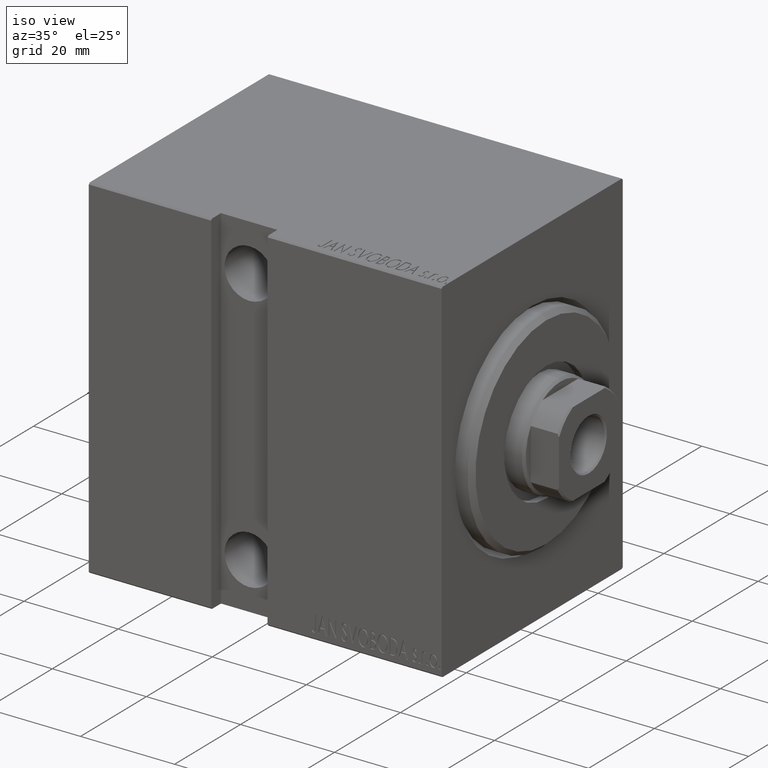
[diagram: clean part render]
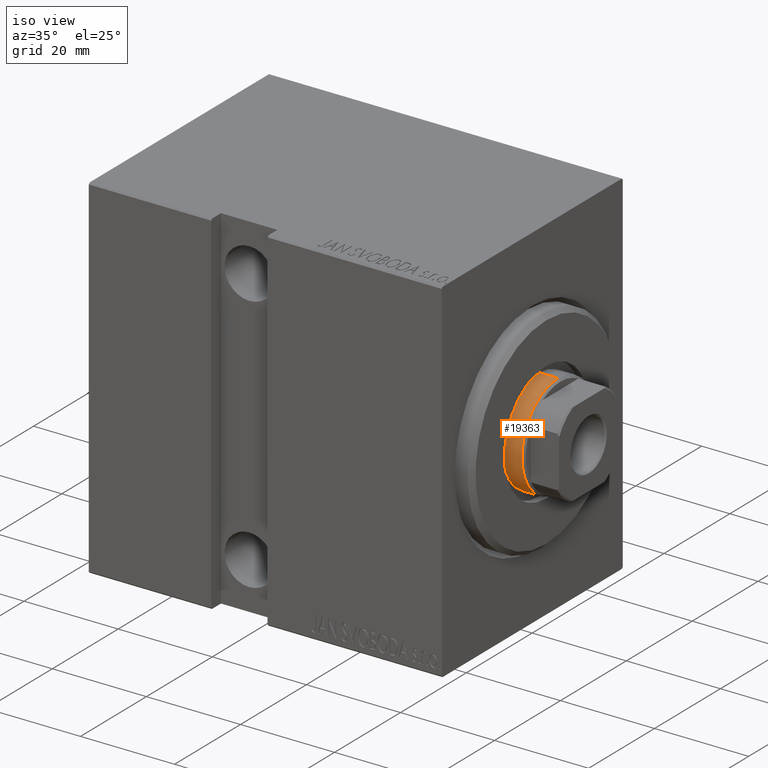
[diagram: same view with one face highlighted and labeled with its STEP entity id]
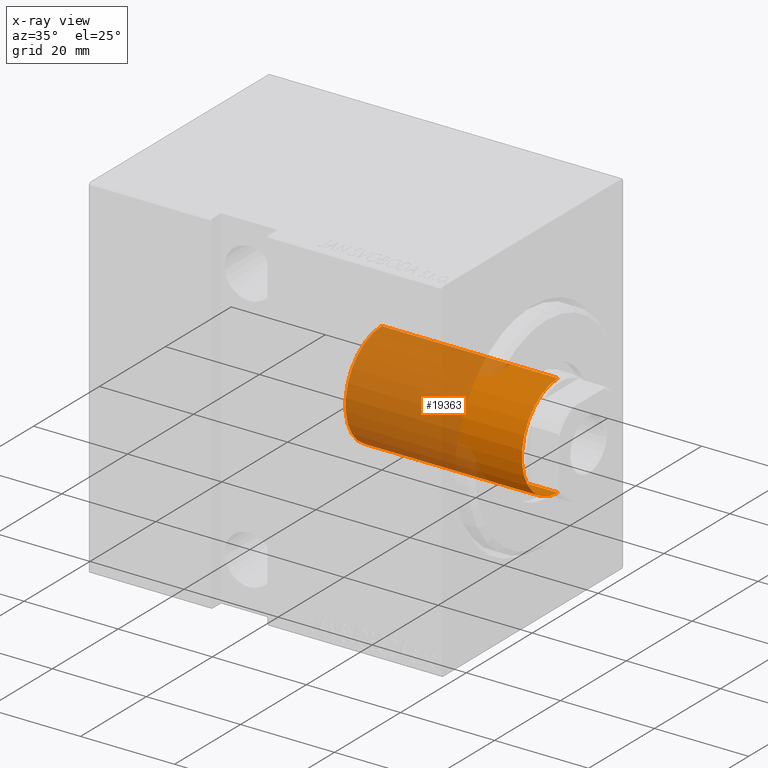
[diagram: x-ray of the same camera — body ghosted, the highlighted face saturated]
A machine part, iso view. The second image highlights one B-rep face of the part: STEP entity #19363.
The next image is the same camera in x-ray: the body ghosted, the highlighted face saturated — about 67% of this face is hidden behind the body in this view.
In plain terms, the highlighted cylindrical surface (partial cylindrical patch) has radius 11 mm, axis along (-1, -0, 0).
Its self-contained STEP definition (entity closure, byte-faithful):
#1019 = EDGE_CURVE ( 'NONE', #36026, #2231, #34700, .T. ) ;
#1024 = CIRCLE ( 'NONE', #32786, 11.00000000000000000 ) ;
#2069 = CARTESIAN_POINT ( 'NONE',  ( 11.00000000000000000, 1.347111479062088405E-15, 71.00000000000001421 ) ) ;
#2231 = VERTEX_POINT ( 'NONE', #38885 ) ;
#4194 = VERTEX_POINT ( 'NONE', #21275 ) ;
#8170 = ORIENTED_EDGE ( 'NONE', *, *, #29616, .T. ) ;
#8427 = VERTEX_POINT ( 'NONE', #12406 ) ;
#9512 = EDGE_CURVE ( 'NONE', #36026, #4194, #1024, .T. ) ;
#9966 = CARTESIAN_POINT ( 'NONE',  ( 11.00000000000000000, 1.347111479062088405E-15, 70.50000000000002842 ) ) ;
#11844 = CARTESIAN_POINT ( 'NONE',  ( -11.00000000000000000, 0.000000000000000000, 71.00000000000001421 ) ) ;
#12406 = CARTESIAN_POINT ( 'NONE',  ( -11.00000000000000000, 0.000000000000000000, 33.00000000000000000 ) ) ;
#13103 = DIRECTION ( 'NONE',  ( 1.000000000000000000, 0.000000000000000000, 0.000000000000000000 ) ) ;
#15824 = AXIS2_PLACEMENT_3D ( 'NONE', #27140, #40327, #13103 ) ;
#17459 = VECTOR ( 'NONE', #41629, 1000.000000000000000 ) ;
#19363 = ADVANCED_FACE ( 'NONE', ( #21347 ), #35189, .T. ) ;
#19602 = EDGE_LOOP ( 'NONE', ( #21258, #31504, #8170, #25514 ) ) ;
#21258 = ORIENTED_EDGE ( 'NONE', *, *, #1019, .F. ) ;
#21275 = CARTESIAN_POINT ( 'NONE',  ( -11.00000000000000000, 0.000000000000000000, 70.50000000000002842 ) ) ;
#21347 = FACE_OUTER_BOUND ( 'NONE', #19602, .T. ) ;
#22029 = CIRCLE ( 'NONE', #15824, 11.00000000000000000 ) ;
#23432 = DIRECTION ( 'NONE',  ( 0.000000000000000000, 0.000000000000000000, -1.000000000000000000 ) ) ;
#25514 = ORIENTED_EDGE ( 'NONE', *, *, #27992, .T. ) ;
#27140 = CARTESIAN_POINT ( 'NONE',  ( 0.000000000000000000, 0.000000000000000000, 33.00000000000000000 ) ) ;
#27992 = EDGE_CURVE ( 'NONE', #8427, #2231, #22029, .T. ) ;
#28499 = LINE ( 'NONE', #11844, #37279 ) ;
#29616 = EDGE_CURVE ( 'NONE', #4194, #8427, #28499, .T. ) ;
#30758 = DIRECTION ( 'NONE',  ( 1.000000000000000000, 0.000000000000000000, 0.000000000000000000 ) ) ;
#31504 = ORIENTED_EDGE ( 'NONE', *, *, #9512, .T. ) ;
#31947 = CARTESIAN_POINT ( 'NONE',  ( 0.000000000000000000, 0.000000000000000000, 71.00000000000001421 ) ) ;
#32786 = AXIS2_PLACEMENT_3D ( 'NONE', #40699, #23432, #30758 ) ;
#34700 = LINE ( 'NONE', #2069, #17459 ) ;
#35189 = CYLINDRICAL_SURFACE ( 'NONE', #35780, 11.00000000000000000 ) ;
#35780 = AXIS2_PLACEMENT_3D ( 'NONE', #31947, #41028, #41465 ) ;
#36026 = VERTEX_POINT ( 'NONE', #9966 ) ;
#37279 = VECTOR ( 'NONE', #42125, 1000.000000000000000 ) ;
#38885 = CARTESIAN_POINT ( 'NONE',  ( 11.00000000000000000, 1.347111479062088405E-15, 33.00000000000000000 ) ) ;
#40327 = DIRECTION ( 'NONE',  ( 0.000000000000000000, 0.000000000000000000, 1.000000000000000000 ) ) ;
#40699 = CARTESIAN_POINT ( 'NONE',  ( 0.000000000000000000, 0.000000000000000000, 70.50000000000002842 ) ) ;
#41028 = DIRECTION ( 'NONE',  ( -0.000000000000000000, -0.000000000000000000, -1.000000000000000000 ) ) ;
#41465 = DIRECTION ( 'NONE',  ( -1.000000000000000000, 0.000000000000000000, 0.000000000000000000 ) ) ;
#41629 = DIRECTION ( 'NONE',  ( -0.000000000000000000, -0.000000000000000000, -1.000000000000000000 ) ) ;
#42125 = DIRECTION ( 'NONE',  ( -0.000000000000000000, -0.000000000000000000, -1.000000000000000000 ) ) ;